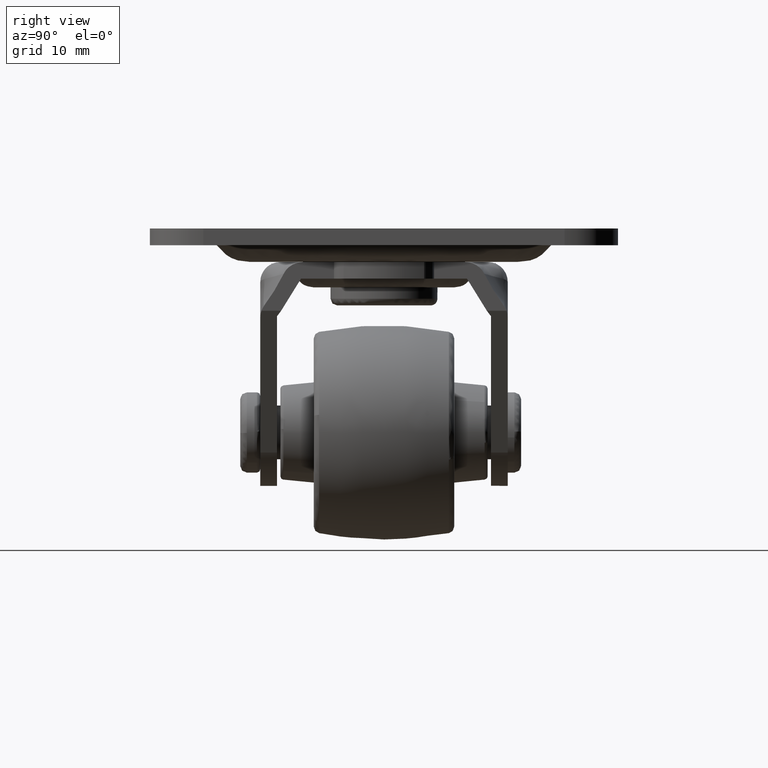
[diagram: clean part render]
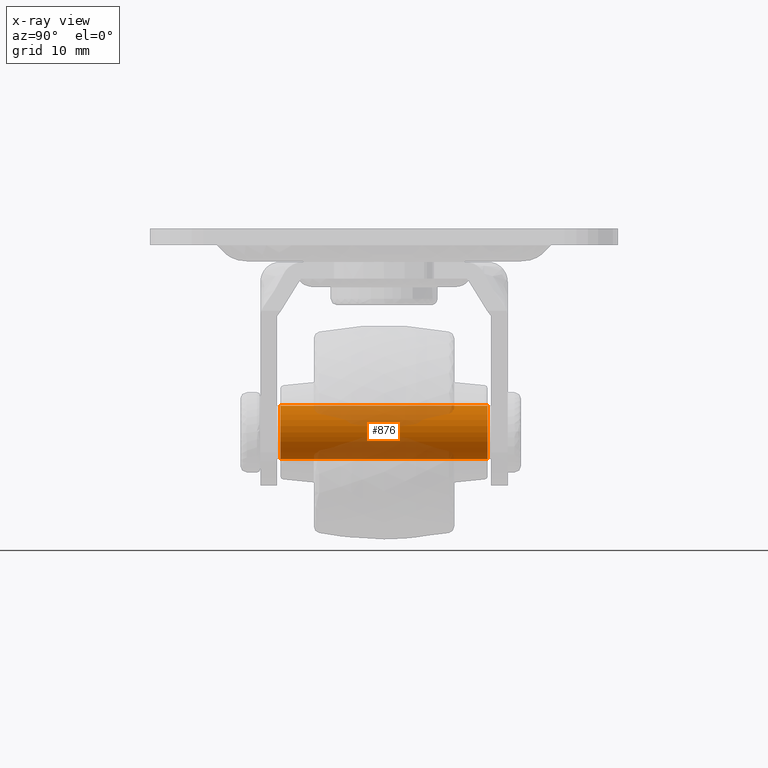
[diagram: x-ray — body ghosted, one internal face saturated and labeled with its STEP entity id]
A machine part, right view, then the same camera in x-ray: the body is ghosted and one INTERNAL B-rep face — a face not visible from any outside direction — is saturated and labeled: STEP entity #876.
In plain terms, the highlighted face is a freeform B-spline surface patch.
Its self-contained STEP definition (entity closure, byte-faithful):
#725=CARTESIAN_POINT('',(-3.054219517539286,16.275000000000002,-2.582969570559937));
#726=CARTESIAN_POINT('',(-2.980296152626926,16.274999999999999,-2.670380020970456));
#727=CARTESIAN_POINT('',(-2.901494582551665,16.274999999999999,-2.753419549356701));
#728=CARTESIAN_POINT('',(-0.148079033194953,16.274999999999999,-5.654914131908367));
#729=CARTESIAN_POINT('',(2.753415549356712,16.274999999999999,-2.901498582551654));
#730=CARTESIAN_POINT('',(5.654910131908378,16.274999999999999,-0.148083033194942));
#731=CARTESIAN_POINT('',(2.901494582551665,16.274999999999999,2.753411549356724));
#732=CARTESIAN_POINT('',(0.148079033194953,16.274999999999999,5.654906131908389));
#733=CARTESIAN_POINT('',(-2.753415549356712,16.274999999999999,2.901490582551677));
#734=CARTESIAN_POINT('',(-3.054219517539286,-16.294375000000009,-2.582969570559937));
#735=CARTESIAN_POINT('',(-2.980296152626926,-16.294374999999999,-2.670380020970456));
#736=CARTESIAN_POINT('',(-2.901494582551665,-16.294374999999999,-2.753419549356701));
#737=CARTESIAN_POINT('',(-0.148079033194953,-16.294374999999999,-5.654914131908367));
#738=CARTESIAN_POINT('',(2.753415549356712,-16.294374999999999,-2.901498582551654));
#739=CARTESIAN_POINT('',(5.654910131908378,-16.294374999999999,-0.148083033194942));
#740=CARTESIAN_POINT('',(2.901494582551665,-16.294374999999999,2.753411549356724));
#741=CARTESIAN_POINT('',(0.148079033194953,-16.294374999999999,5.654906131908389));
#742=CARTESIAN_POINT('',(-2.753415549356712,-16.294374999999999,2.901490582551677));
#750=(BOUNDED_SURFACE()B_SPLINE_SURFACE(2,1,((#725,#734),(#726,#735),(#727,#736),(#728,#737),(#729,#738),(#730,#739),(#731,#740),(#732,#741),(#733,#742)),.UNSPECIFIED.,.F.,.F.,.U.)B_SPLINE_SURFACE_WITH_KNOTS((3,2,2,2,3),(2,2),(0.0,0.265096414822101,6.892506785374621,13.519917155927139,20.147327526479661),(0.0,32.569375000000008),.UNSPECIFIED.)GEOMETRIC_REPRESENTATION_ITEM()RATIONAL_B_SPLINE_SURFACE(((0.977505800795127,0.977505800795127),(0.988284271247462,0.988284271247462),(1.0,1.0),(0.707106781186548,0.707106781186548),(1.0,1.0),(0.707106781186548,0.707106781186548),(1.0,1.0),(0.707106781186548,0.707106781186548),(1.0,1.0)))REPRESENTATION_ITEM('')SURFACE());
#751=CARTESIAN_POINT('',(-3.054219714116253,15.500000000000430,-2.582969642130964));
#752=VERTEX_POINT('',#751);
#753=CARTESIAN_POINT('',(0.0,15.500000000000000,-3.999999999999988));
#754=VERTEX_POINT('',#753);
#755=CARTESIAN_POINT('',(-3.054219714116253,15.500000000000430,-2.582969642130964));
#756=CARTESIAN_POINT('',(-2.773896319265454,15.500000000000391,-2.914886181490874));
#757=CARTESIAN_POINT('',(-2.313046140386568,15.500000000000380,-3.307147384673359));
#758=CARTESIAN_POINT('',(-1.525654074207980,15.500000000000210,-3.718964172315644));
#759=CARTESIAN_POINT('',(-0.832604231128224,15.500000000000130,-3.942679536896571));
#760=CARTESIAN_POINT('',(-0.271500232728803,15.499999999999970,-4.000031300846164));
#761=CARTESIAN_POINT('',(0.0,15.500000000000000,-3.999999999999988));
#762=B_SPLINE_CURVE_WITH_KNOTS('',3,(#755,#756,#757,#758,#759,#760,#761),.UNSPECIFIED.,.F.,.U.,(4,1,1,1,4),(0.000000035722481,1.303221885737893,1.791898444542542,2.660723817680076,3.475229855610969),.UNSPECIFIED.);
#763=EDGE_CURVE('',#752,#754,#762,.T.);
#764=ORIENTED_EDGE('',*,*,#763,.F.);
#765=CARTESIAN_POINT('',(-3.054219713549132,-15.500000000000000,-2.582969642801555));
#766=VERTEX_POINT('',#765);
#767=CARTESIAN_POINT('',(-3.054219714116253,15.500000000000430,-2.582969642130964));
#768=CARTESIAN_POINT('',(-3.054219713549132,-15.500000000000000,-2.582969642801555));
#769=QUASI_UNIFORM_CURVE('',1,(#767,#768),.UNSPECIFIED.,.F.,.U.);
#770=EDGE_CURVE('',#752,#766,#769,.T.);
#771=ORIENTED_EDGE('',*,*,#770,.T.);
#772=CARTESIAN_POINT('',(0.0,-15.500000000000000,-3.999999999999988));
#773=VERTEX_POINT('',#772);
#774=CARTESIAN_POINT('',(-3.054219713549132,-15.500000000000000,-2.582969642801555));
#775=CARTESIAN_POINT('',(-2.878930179789175,-15.500000000000011,-2.790304076437732));
#776=CARTESIAN_POINT('',(-2.538280981192482,-15.500000000000011,-3.118511463547355));
#777=CARTESIAN_POINT('',(-1.829727994266342,-15.499999999999959,-3.593633858722420));
#778=CARTESIAN_POINT('',(-0.995519303245961,-15.500000000000020,-3.920351511923901));
#779=CARTESIAN_POINT('',(-0.307695032512939,-15.500000000000000,-4.000031699618411));
#780=CARTESIAN_POINT('',(0.0,-15.500000000000000,-3.999999999999988));
#781=B_SPLINE_CURVE_WITH_KNOTS('',3,(#774,#775,#776,#777,#778,#779,#780),.UNSPECIFIED.,.F.,.U.,(4,1,1,1,4),(0.000000035722989,0.814506073461327,1.411818399704917,2.552120982966225,3.475229854732695),.UNSPECIFIED.);
#782=EDGE_CURVE('',#766,#773,#781,.T.);
#783=ORIENTED_EDGE('',*,*,#782,.T.);
#784=CARTESIAN_POINT('',(3.999995999999920,-15.500000000000000,-0.000003203691556));
#785=VERTEX_POINT('',#784);
#786=CARTESIAN_POINT('',(0.0,-15.500000000000000,-3.999999999999988));
#787=CARTESIAN_POINT('',(0.212709832633918,-15.499999999999989,-4.000006134819723));
#788=CARTESIAN_POINT('',(0.719950392306560,-15.500000000000011,-3.959485233766006));
#789=CARTESIAN_POINT('',(1.449797338922920,-15.500000000000030,-3.757530556787045));
#790=CARTESIAN_POINT('',(2.078943566518988,-15.499999999999920,-3.435930267413205));
#791=CARTESIAN_POINT('',(2.623673849987896,-15.500000000000091,-3.042201359360959));
#792=CARTESIAN_POINT('',(3.146882249469079,-15.499999999999980,-2.519085957162720));
#793=CARTESIAN_POINT('',(3.582907187494993,-15.500000000000011,-1.839755841228442));
#794=CARTESIAN_POINT('',(3.913869858949792,-15.499999999999980,-0.981667789865512));
#795=CARTESIAN_POINT('',(4.000153607409629,-15.500000000000041,-0.376360986254704));
#796=CARTESIAN_POINT('',(3.999995999999920,-15.500000000000000,-0.000003203691556));
#797=B_SPLINE_CURVE_WITH_KNOTS('',3,(#786,#787,#788,#789,#790,#791,#792,#793,#794,#795,#796),.UNSPECIFIED.,.F.,.U.,(4,1,1,1,1,1,1,1,4),(0.000000115610389,0.638134919370127,1.521716378186763,2.258037299812830,2.748912183786126,3.534305617847252,4.466969501885431,5.154206420294356,6.283218897099404),.UNSPECIFIED.);
#798=EDGE_CURVE('',#773,#785,#797,.T.);
#799=ORIENTED_EDGE('',*,*,#798,.T.);
#800=CARTESIAN_POINT('',(0.0,-15.500000000000000,3.999992000000011));
#801=VERTEX_POINT('',#800);
#802=CARTESIAN_POINT('',(3.999995999999920,-15.500000000000000,-0.000003203691556));
#803=CARTESIAN_POINT('',(4.000163307461400,-15.500000000000020,0.376356064365219));
#804=CARTESIAN_POINT('',(3.920855188501408,-15.500000000000000,0.932577363315715));
#805=CARTESIAN_POINT('',(3.606218708322098,-15.499999999999989,1.795415499406217));
#806=CARTESIAN_POINT('',(3.181810920199323,-15.499999999999980,2.484221265394985));
#807=CARTESIAN_POINT('',(2.577168348902264,-15.500000000000000,3.088702252919165));
#808=CARTESIAN_POINT('',(1.967775552710974,-15.500000000000041,3.506787842242657));
#809=CARTESIAN_POINT('',(1.128851132541429,-15.500000000000041,3.884918367680830));
#810=CARTESIAN_POINT('',(0.441829940477448,-15.499999999999959,4.000294560916853));
#811=CARTESIAN_POINT('',(0.0,-15.500000000000000,3.999992000000011));
#812=B_SPLINE_CURVE_WITH_KNOTS('',3,(#802,#803,#804,#805,#806,#807,#808,#809,#810,#811),.UNSPECIFIED.,.F.,.U.,(4,1,1,1,1,1,1,4),(0.000000115888490,1.129014710872383,1.668982081675038,2.748911792086098,3.534305114222427,4.221524305941142,4.957858190874614,6.283217999468584),.UNSPECIFIED.);
#813=EDGE_CURVE('',#785,#801,#812,.T.);
#814=ORIENTED_EDGE('',*,*,#813,.T.);
#815=CARTESIAN_POINT('',(-2.753415423999241,-15.500000000000000,2.901490427440209));
#816=VERTEX_POINT('',#815);
#817=CARTESIAN_POINT('',(0.0,-15.500000000000000,3.999992000000011));
#818=CARTESIAN_POINT('',(-0.268891126550390,-15.500000000000000,4.000025243786371));
#819=CARTESIAN_POINT('',(-0.759214097387224,-15.499999999999989,3.950365238499790));
#820=CARTESIAN_POINT('',(-1.398980665397782,-15.500000000000000,3.763116054691388));
#821=CARTESIAN_POINT('',(-2.075224827821709,-15.500000000000000,3.450538030720218));
#822=CARTESIAN_POINT('',(-2.501075347929356,-15.500000000000060,3.141118961247471));
#823=CARTESIAN_POINT('',(-2.753415423999241,-15.500000000000000,2.901490427440209));
#824=B_SPLINE_CURVE_WITH_KNOTS('',3,(#817,#818,#819,#820,#821,#822,#823),.UNSPECIFIED.,.F.,.U.,(4,1,1,1,4),(0.000000026870260,0.806673875912717,1.471009545619941,1.992955917879334,3.036887607920125),.UNSPECIFIED.);
#825=EDGE_CURVE('',#801,#816,#824,.T.);
#826=ORIENTED_EDGE('',*,*,#825,.T.);
#827=CARTESIAN_POINT('',(-2.753415424138323,15.499999999999501,2.901490427308226));
#828=VERTEX_POINT('',#827);
#829=CARTESIAN_POINT('',(-2.753415424138323,15.499999999999501,2.901490427308226));
#830=CARTESIAN_POINT('',(-2.753415423999241,-15.500000000000000,2.901490427440209));
#831=QUASI_UNIFORM_CURVE('',1,(#829,#830),.UNSPECIFIED.,.F.,.U.);
#832=EDGE_CURVE('',#828,#816,#831,.T.);
#833=ORIENTED_EDGE('',*,*,#832,.F.);
#834=CARTESIAN_POINT('',(0.0,15.500000000000000,3.999992000000011));
#835=VERTEX_POINT('',#834);
#836=CARTESIAN_POINT('',(0.0,15.500000000000000,3.999992000000011));
#837=CARTESIAN_POINT('',(-0.427096783952505,15.499999999999931,4.000227433646741));
#838=CARTESIAN_POINT('',(-1.091235097926697,15.499999999999821,3.892544998725815));
#839=CARTESIAN_POINT('',(-2.023614660766118,15.499999999999600,3.488069459408592));
#840=CARTESIAN_POINT('',(-2.501063420337371,15.499999999999639,3.141097289615607));
#841=CARTESIAN_POINT('',(-2.753415424138323,15.499999999999501,2.901490427308226));
#842=B_SPLINE_CURVE_WITH_KNOTS('',3,(#836,#837,#838,#839,#840,#841),.UNSPECIFIED.,.F.,.U.,(4,1,1,4),(0.000000026870268,1.281188118568301,1.992955918005231,3.036887608111864),.UNSPECIFIED.);
#843=EDGE_CURVE('',#835,#828,#842,.T.);
#844=ORIENTED_EDGE('',*,*,#843,.F.);
#845=CARTESIAN_POINT('',(3.999995999999920,15.500000000000000,-0.000003203691556));
#846=VERTEX_POINT('',#845);
#847=CARTESIAN_POINT('',(3.999995999999920,15.500000000000000,-0.000003203691556));
#848=CARTESIAN_POINT('',(4.000163307461400,15.500000000000020,0.376356064365219));
#849=CARTESIAN_POINT('',(3.920855188501408,15.500000000000000,0.932577363315715));
#850=CARTESIAN_POINT('',(3.606218708322098,15.499999999999989,1.795415499406217));
#851=CARTESIAN_POINT('',(3.181810920199323,15.499999999999980,2.484221265394985));
#852=CARTESIAN_POINT('',(2.577168348902264,15.500000000000000,3.088702252919165));
#853=CARTESIAN_POINT('',(1.967775552710974,15.500000000000041,3.506787842242657));
#854=CARTESIAN_POINT('',(1.128851132541429,15.500000000000041,3.884918367680830));
#855=CARTESIAN_POINT('',(0.441829940477448,15.499999999999959,4.000294560916853));
#856=CARTESIAN_POINT('',(0.0,15.500000000000000,3.999992000000011));
#857=B_SPLINE_CURVE_WITH_KNOTS('',3,(#847,#848,#849,#850,#851,#852,#853,#854,#855,#856),.UNSPECIFIED.,.F.,.U.,(4,1,1,1,1,1,1,4),(0.000000115888490,1.129014710872383,1.668982081675038,2.748911792086098,3.534305114222427,4.221524305941142,4.957858190874614,6.283217999468584),.UNSPECIFIED.);
#858=EDGE_CURVE('',#846,#835,#857,.T.);
#859=ORIENTED_EDGE('',*,*,#858,.F.);
#860=CARTESIAN_POINT('',(0.0,15.500000000000000,-3.999999999999988));
#861=CARTESIAN_POINT('',(0.212709832633918,15.499999999999989,-4.000006134819723));
#862=CARTESIAN_POINT('',(0.719950392306560,15.500000000000011,-3.959485233766006));
#863=CARTESIAN_POINT('',(1.449797338922920,15.500000000000030,-3.757530556787045));
#864=CARTESIAN_POINT('',(2.078943566518988,15.499999999999920,-3.435930267413205));
#865=CARTESIAN_POINT('',(2.623673849987896,15.500000000000091,-3.042201359360959));
#866=CARTESIAN_POINT('',(3.146882249469079,15.499999999999980,-2.519085957162720));
#867=CARTESIAN_POINT('',(3.582907187494993,15.500000000000011,-1.839755841228442));
#868=CARTESIAN_POINT('',(3.913869858949792,15.499999999999980,-0.981667789865512));
#869=CARTESIAN_POINT('',(4.000153607409629,15.500000000000041,-0.376360986254704));
#870=CARTESIAN_POINT('',(3.999995999999920,15.500000000000000,-0.000003203691556));
#871=B_SPLINE_CURVE_WITH_KNOTS('',3,(#860,#861,#862,#863,#864,#865,#866,#867,#868,#869,#870),.UNSPECIFIED.,.F.,.U.,(4,1,1,1,1,1,1,1,4),(0.000000115610389,0.638134919370127,1.521716378186763,2.258037299812830,2.748912183786126,3.534305617847252,4.466969501885431,5.154206420294356,6.283218897099404),.UNSPECIFIED.);
#872=EDGE_CURVE('',#754,#846,#871,.T.);
#873=ORIENTED_EDGE('',*,*,#872,.F.);
#874=EDGE_LOOP('',(#764,#771,#783,#799,#814,#826,#833,#844,#859,#873));
#875=FACE_OUTER_BOUND('',#874,.T.);
#876=ADVANCED_FACE('',(#875),#750,.F.);